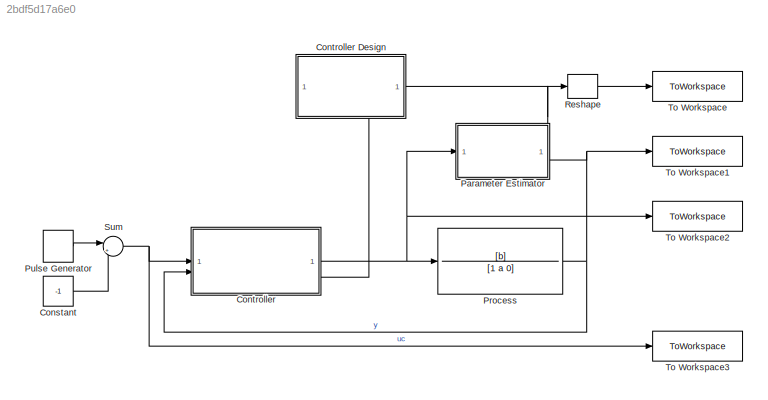
MODEL slx_2bdf5d17a6e0
KIND model
CONFIG AbsTol = auto
CONFIG EnableMultiTasking = off
CONFIG FixedStep = sample_time
CONFIG MaxStep = auto
CONFIG MinStep = auto
CONFIG RelTol = 1e-3
CONFIG SampleTimeConstraint = Unconstrained
CONFIG SolverName = FixedStepAuto
CONFIG StartTime = start_time
CONFIG StopTime = stop_time
BLOCK [Constant] Constant
  Value = -1
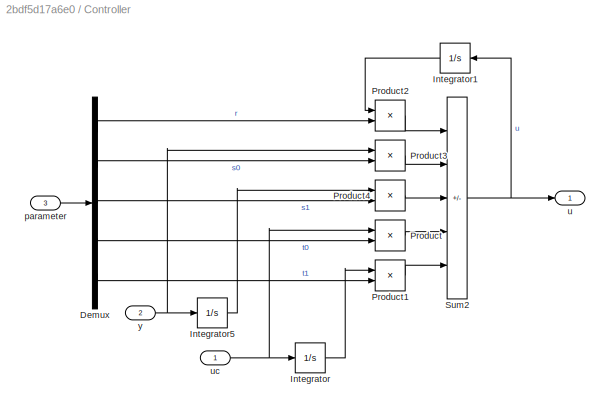
BLOCK [SubSystem] Controller
  PortSchema = {"entries":[{"content":{"sides":[{"content":{"connectorIds":["In1","In2"]},"type":"ConnectorPlacement.EquallySpacedRectSide","uuid":"c7578673-2701-46d0-8f3b-643132126a27"},{"content":{"connectorIds":["Out1"],"side":"RIGHT"},"type":"ConnectorPlacement.EquallySpacedRectSide","uuid":"d983a872-f9db-4cb9-8484-10da0d2a1e0a"},{"content":{"connectorIds":["In3"],"side":"TOP"},"type":"ConnectorPlacement.Equ...<+251ch>
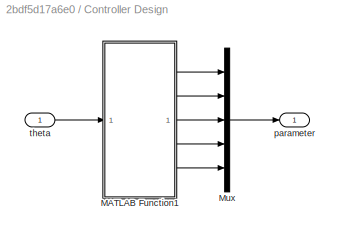
BLOCK [SubSystem] Controller Design
  PortSchema = {"entries":[{"content":{"sides":[{"content":{"connectorIds":["Out1"]},"type":"ConnectorPlacement.EquallySpacedRectSide","uuid":"58baf7c7-d8e5-457e-9a16-6ffd3cafe73e"},{"content":{"connectorIds":["In1"],"side":"RIGHT"},"type":"ConnectorPlacement.EquallySpacedRectSide","uuid":"4da50bc7-c28e-4e6a-a02c-3014d7cddf80"},{"content":{"side":"TOP"},"type":"ConnectorPlacement.EquallySpacedRectSide","uuid":"1...<+348ch>
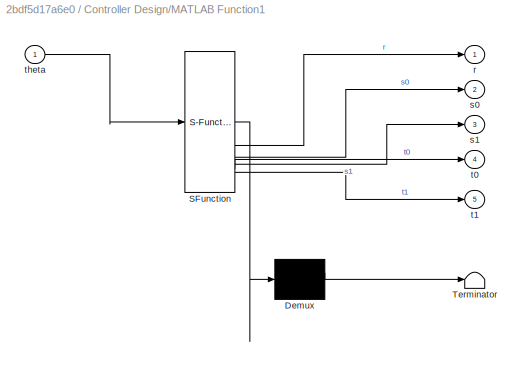
BLOCK [SubSystem] Controller Design/MATLAB Function1
  ErrorFcn = Stateflow.Translate.translate
  LibrarySourceBlock = simulink/User-Defined\nFunctions/MATLAB Function
  PermitHierarchicalResolution = ExplicitOnly
  SFBlockType = MATLAB Function
  TreatAsAtomicUnit = on
BLOCK [Demux] Controller Design/MATLAB Function1/ Demux 
  Outputs = 1
BLOCK [S-Function] Controller Design/MATLAB Function1/ SFunction 
  EnableBusSupport = on
  FunctionName = sf_sfun
  PortCounts = [1 6]
  SFcnIsStateOwnerBlock = off
  SFunctionDeploymentMode = off
  Tag = Stateflow S-Function 1
BLOCK [Terminator] Controller Design/MATLAB Function1/ Terminator 
BLOCK [Outport] Controller Design/MATLAB Function1/r
BLOCK [Outport] Controller Design/MATLAB Function1/s0
  Port = 2
BLOCK [Outport] Controller Design/MATLAB Function1/s1
  Port = 3
BLOCK [Outport] Controller Design/MATLAB Function1/t0
  Port = 4
BLOCK [Outport] Controller Design/MATLAB Function1/t1
  Port = 5
BLOCK [Inport] Controller Design/MATLAB Function1/theta
BLOCK [Mux] Controller Design/Mux
  DisplayOption = bar
  Inputs = 5
BLOCK [Outport] Controller Design/parameter
BLOCK [Inport] Controller Design/theta
BLOCK [Demux] Controller/Demux
  Outputs = 5
BLOCK [Integrator] Controller/Integrator
BLOCK [Integrator] Controller/Integrator1
  NameLocation = top
BLOCK [Integrator] Controller/Integrator5
BLOCK [Product] Controller/Product
BLOCK [Product] Controller/Product1
BLOCK [Product] Controller/Product2
BLOCK [Product] Controller/Product3
BLOCK [Product] Controller/Product4
BLOCK [Sum] Controller/Sum2
  IconShape = rectangular
  Inputs = ---++
BLOCK [Inport] Controller/parameter
  Port = 3
BLOCK [Outport] Controller/u
BLOCK [Inport] Controller/uc
BLOCK [Inport] Controller/y
  Port = 2
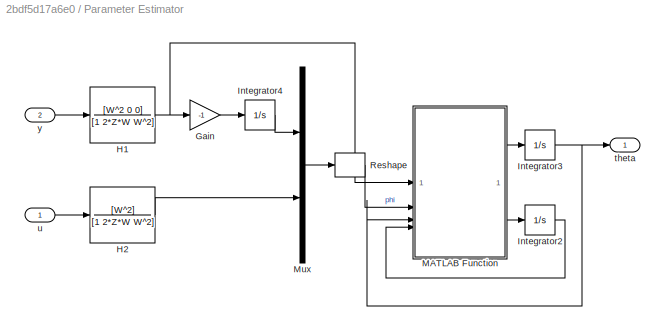
BLOCK [SubSystem] Parameter Estimator
  PortSchema = {"entries":[{"content":{"sides":[{"content":{"connectorIds":["In1"]},"type":"ConnectorPlacement.EquallySpacedRectSide","uuid":"bbd79f27-b198-4510-be87-e6491af917de"},{"content":{"connectorIds":["In2"],"side":"RIGHT"},"type":"ConnectorPlacement.EquallySpacedRectSide","uuid":"b3ff166f-b811-4ca0-a53c-c9677dfa5441"},{"content":{"connectorIds":["Out1"],"side":"TOP"},"type":"ConnectorPlacement.EquallySp...<+245ch>
BLOCK [Gain] Parameter Estimator/Gain
  Gain = -1
BLOCK [TransferFcn] Parameter Estimator/H1
  Denominator = [1 2*Z*W W^2]
  Numerator = [W^2 0 0]
BLOCK [TransferFcn] Parameter Estimator/H2
  Denominator = [1 2*Z*W W^2]
  Numerator = [W^2]
BLOCK [Integrator] Parameter Estimator/Integrator2
  InitialCondition = 100*eye(2)
BLOCK [Integrator] Parameter Estimator/Integrator3
  InitialCondition = [2 0.2]
BLOCK [Integrator] Parameter Estimator/Integrator4
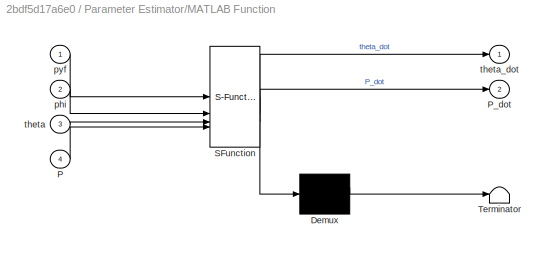
BLOCK [SubSystem] Parameter Estimator/MATLAB Function
  ErrorFcn = Stateflow.Translate.translate
  LibrarySourceBlock = simulink/User-Defined\nFunctions/MATLAB Function
  PermitHierarchicalResolution = ExplicitOnly
  SFBlockType = MATLAB Function
  TreatAsAtomicUnit = on
BLOCK [Demux] Parameter Estimator/MATLAB Function/ Demux 
  Outputs = 1
BLOCK [S-Function] Parameter Estimator/MATLAB Function/ SFunction 
  EnableBusSupport = on
  FunctionName = sf_sfun
  PortCounts = [4 3]
  SFcnIsStateOwnerBlock = off
  SFunctionDeploymentMode = off
  Tag = Stateflow S-Function 2
BLOCK [Terminator] Parameter Estimator/MATLAB Function/ Terminator 
BLOCK [Inport] Parameter Estimator/MATLAB Function/P
  Port = 4
BLOCK [Outport] Parameter Estimator/MATLAB Function/P_dot
  Port = 2
BLOCK [Inport] Parameter Estimator/MATLAB Function/phi
  Port = 2
BLOCK [Inport] Parameter Estimator/MATLAB Function/pyf
BLOCK [Inport] Parameter Estimator/MATLAB Function/theta
  Port = 3
BLOCK [Outport] Parameter Estimator/MATLAB Function/theta_dot
BLOCK [Mux] Parameter Estimator/Mux
  DisplayOption = bar
  Inputs = 2
BLOCK [Reshape] Parameter Estimator/Reshape
  OutputDimensionality = Column vector (2-D)
BLOCK [Outport] Parameter Estimator/theta
BLOCK [Inport] Parameter Estimator/u
BLOCK [Inport] Parameter Estimator/y
  Port = 2
BLOCK [TransferFcn] Process
  Denominator = [1 a 0]
  Numerator = [b]
BLOCK [DiscretePulseGenerator] Pulse Generator
  Amplitude = 2
  Period = 50
  PulseType = Time based
  PulseWidth = 50
BLOCK [Reshape] Reshape
BLOCK [Sum] Sum
  Inputs = |++
BLOCK [ToWorkspace] To Workspace
  FixptAsFi = on
  MaxDataPoints = inf
  SampleTime = -1
  SaveFormat = Timeseries
  VariableName = Theta
BLOCK [ToWorkspace] To Workspace1
  FixptAsFi = on
  MaxDataPoints = inf
  SampleTime = -1
  SaveFormat = Timeseries
  VariableName = Y
BLOCK [ToWorkspace] To Workspace2
  FixptAsFi = on
  MaxDataPoints = inf
  SampleTime = -1
  SaveFormat = Timeseries
  VariableName = U
BLOCK [ToWorkspace] To Workspace3
  FixptAsFi = on
  MaxDataPoints = inf
  SampleTime = -1
  SaveFormat = Timeseries
  VariableName = Uc
LINE Constant:1 -> Sum:2
LINE Controller Design/MATLAB Function1:1 -> Controller Design/Mux:1
LINE Controller Design/MATLAB Function1:2 -> Controller Design/Mux:2
LINE Controller Design/MATLAB Function1:3 -> Controller Design/Mux:3
LINE Controller Design/MATLAB Function1:4 -> Controller Design/Mux:4
LINE Controller Design/MATLAB Function1:5 -> Controller Design/Mux:5
LINE Controller Design/Mux:1 -> Controller Design/parameter:1
LINE Controller Design/theta:1 -> Controller Design/MATLAB Function1:1
LINE Controller Design:1 -> Controller:3
LINE Controller/Demux:1 -> Controller/Product2:2
LINE Controller/Demux:2 -> Controller/Product3:2
LINE Controller/Demux:3 -> Controller/Product4:2
LINE Controller/Demux:4 -> Controller/Product:2
LINE Controller/Demux:5 -> Controller/Product1:2
LINE Controller/Integrator1:1 -> Controller/Product2:1
LINE Controller/Integrator5:1 -> Controller/Product4:1
LINE Controller/Integrator:1 -> Controller/Product1:1
LINE Controller/Product1:1 -> Controller/Sum2:5
LINE Controller/Product2:1 -> Controller/Sum2:1
LINE Controller/Product3:1 -> Controller/Sum2:2
LINE Controller/Product4:1 -> Controller/Sum2:3
LINE Controller/Product:1 -> Controller/Sum2:4
NET Controller/Sum2:1 -> Controller/Integrator1:1, Controller/u:1
LINE Controller/parameter:1 -> Controller/Demux:1
NET Controller/uc:1 -> Controller/Integrator:1, Controller/Product:1
NET Controller/y:1 -> Controller/Integrator5:1, Controller/Product3:1
NET Controller:1 -> Parameter Estimator:1, Process:1, To Workspace2:1
LINE Parameter Estimator/Gain:1 -> Parameter Estimator/Integrator4:1
NET Parameter Estimator/H1:1 -> Parameter Estimator/Gain:1, Parameter Estimator/MATLAB Function:1
LINE Parameter Estimator/H2:1 -> Parameter Estimator/Mux:2
LINE Parameter Estimator/Integrator2:1 -> Parameter Estimator/MATLAB Function:4
NET Parameter Estimator/Integrator3:1 -> Parameter Estimator/MATLAB Function:3, Parameter Estimator/theta:1
LINE Parameter Estimator/Integrator4:1 -> Parameter Estimator/Mux:1
LINE Parameter Estimator/MATLAB Function:1 -> Parameter Estimator/Integrator3:1
LINE Parameter Estimator/MATLAB Function:2 -> Parameter Estimator/Integrator2:1
LINE Parameter Estimator/Mux:1 -> Parameter Estimator/Reshape:1
LINE Parameter Estimator/Reshape:1 -> Parameter Estimator/MATLAB Function:2
LINE Parameter Estimator/u:1 -> Parameter Estimator/H2:1
LINE Parameter Estimator/y:1 -> Parameter Estimator/H1:1
NET Parameter Estimator:1 -> Controller Design:1, Reshape:1
NET Process:1 -> Controller:2, Parameter Estimator:2, To Workspace1:1
LINE Pulse Generator:1 -> Sum:1
LINE Reshape:1 -> To Workspace:1
NET Sum:1 -> Controller:1, To Workspace3:1
note: NET lines group one-source signal fan-out (src -> all destinations, sorted); 1:1 wires keep LINE
CHART Controller
Design/MATLAB Function1 states=1 transitions=1
  STATE_LABEL 'eML_blk_kernel()'
  STATE_LABEL 'SCRIPT:\nfunction [r, s0 ,s1, t0, t1] = fcn(theta)\na = theta(1);\nb = theta(2);\nW = 1;\nZ = 0.7;\na0 = 2;\n\nPhi = [1 0 0; a b 0; 0 0 b];\nY = [2*Z*W+a0-a; 2*Z*W*a0+W^2; a0*W^2];\nX = Phi\\Y;\nr = X(1);\ns0 = X(2); \ns1 = X(3);\nbeta = W^2 / b;\nt0 = beta;\nt1 = beta*a0;\n'
CHART Parameter 
Estimator/MATLAB Function states=1 transitions=1
  STATE_LABEL 'eML_blk_kernel()'
  STATE_LABEL "SCRIPT:\nfunction [theta_dot, P_dot] = fcn(pyf, phi, theta, P)\nalpha = 0;\ne = pyf - phi'*theta;\ntheta_dot = P*phi*e;\nP_dot = alpha*P - P*(phi*phi')*P;"
CHART  states=0 transitions=0
CHART  states=0 transitions=0
